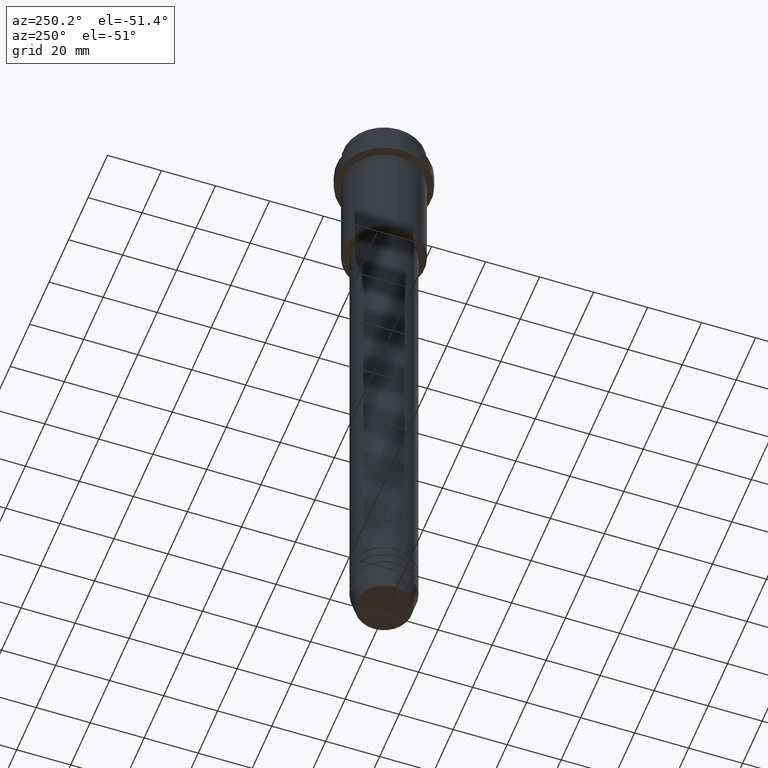
[diagram: clean part render]
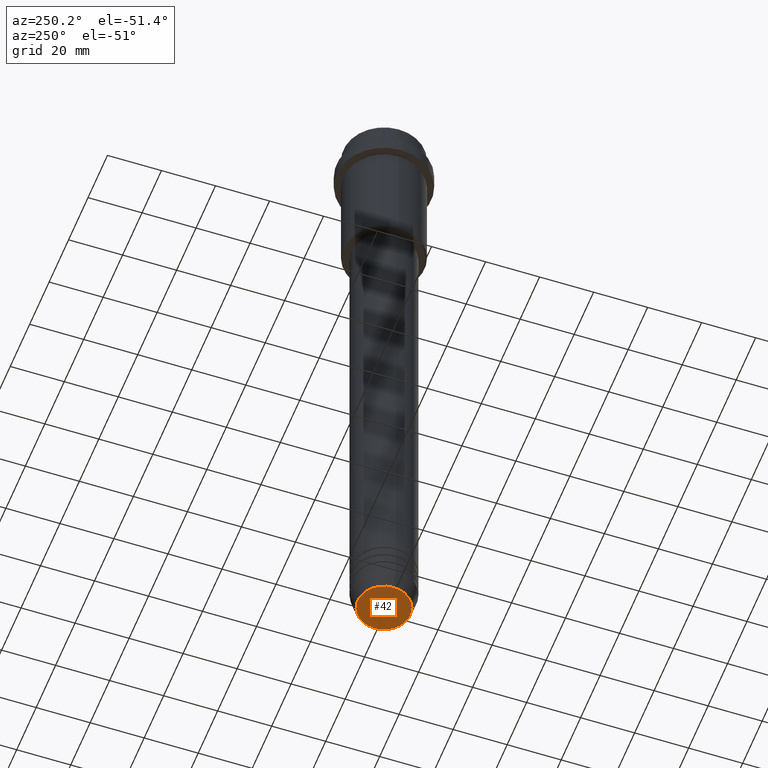
[diagram: same view with one face highlighted and labeled with its STEP entity id]
A machine part, auxiliary view. The second image highlights one B-rep face of the part: STEP entity #42.
In plain terms, the highlighted planar face has unit normal (0, -0, 1).
Its self-contained STEP definition (entity closure, byte-faithful):
#42 = ADVANCED_FACE ( 'NONE', ( #872 ), #1313, .F. ) ;
#147 = CIRCLE ( 'NONE', #1126, 9.740692158992658278 ) ;
#274 = DIRECTION ( 'NONE',  ( 0.000000000000000000, 0.000000000000000000, -1.000000000000000000 ) ) ;
#294 = EDGE_LOOP ( 'NONE', ( #682, #1060 ) ) ;
#338 = VERTEX_POINT ( 'NONE', #590 ) ;
#339 = AXIS2_PLACEMENT_3D ( 'NONE', #483, #274, #621 ) ;
#342 = CARTESIAN_POINT ( 'NONE',  ( 0.000000000000000000, 0.000000000000000000, -250.0000000000000000 ) ) ;
#426 = CIRCLE ( 'NONE', #339, 9.740692158992658278 ) ;
#430 = DIRECTION ( 'NONE',  ( 0.000000000000000000, -0.000000000000000000, 1.000000000000000000 ) ) ;
#483 = CARTESIAN_POINT ( 'NONE',  ( 0.000000000000000000, 0.000000000000000000, -250.0000000000000000 ) ) ;
#556 = AXIS2_PLACEMENT_3D ( 'NONE', #342, #430, #768 ) ;
#590 = CARTESIAN_POINT ( 'NONE',  ( 9.740692158992658278, 0.000000000000000000, -250.0000000000000000 ) ) ;
#621 = DIRECTION ( 'NONE',  ( 1.000000000000000000, 0.000000000000000000, 0.000000000000000000 ) ) ;
#682 = ORIENTED_EDGE ( 'NONE', *, *, #728, .T. ) ;
#728 = EDGE_CURVE ( 'NONE', #338, #1110, #426, .T. ) ;
#768 = DIRECTION ( 'NONE',  ( 1.000000000000000000, 0.000000000000000000, 0.000000000000000000 ) ) ;
#872 = FACE_OUTER_BOUND ( 'NONE', #294, .T. ) ;
#899 = DIRECTION ( 'NONE',  ( 0.000000000000000000, 0.000000000000000000, -1.000000000000000000 ) ) ;
#979 = CARTESIAN_POINT ( 'NONE',  ( 0.000000000000000000, 0.000000000000000000, -250.0000000000000000 ) ) ;
#1060 = ORIENTED_EDGE ( 'NONE', *, *, #1351, .T. ) ;
#1110 = VERTEX_POINT ( 'NONE', #1367 ) ;
#1126 = AXIS2_PLACEMENT_3D ( 'NONE', #979, #899, #1214 ) ;
#1214 = DIRECTION ( 'NONE',  ( 1.000000000000000000, 0.000000000000000000, 0.000000000000000000 ) ) ;
#1313 = PLANE ( 'NONE',  #556 ) ;
#1351 = EDGE_CURVE ( 'NONE', #1110, #338, #147, .T. ) ;
#1367 = CARTESIAN_POINT ( 'NONE',  ( -9.740692158992658278, 1.222463696683474999E-15, -250.0000000000000000 ) ) ;